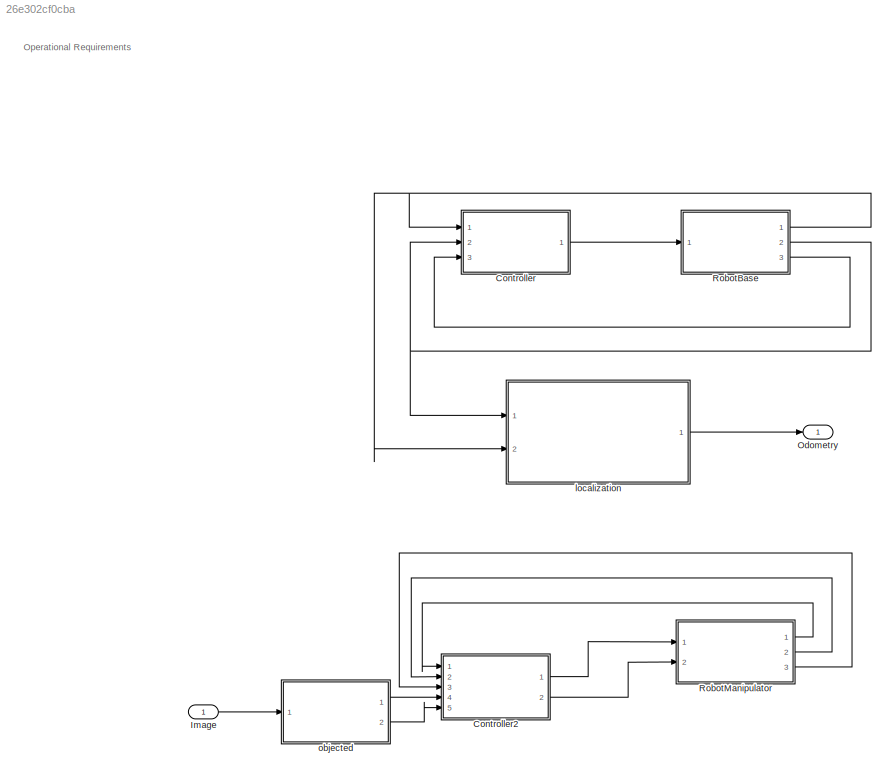
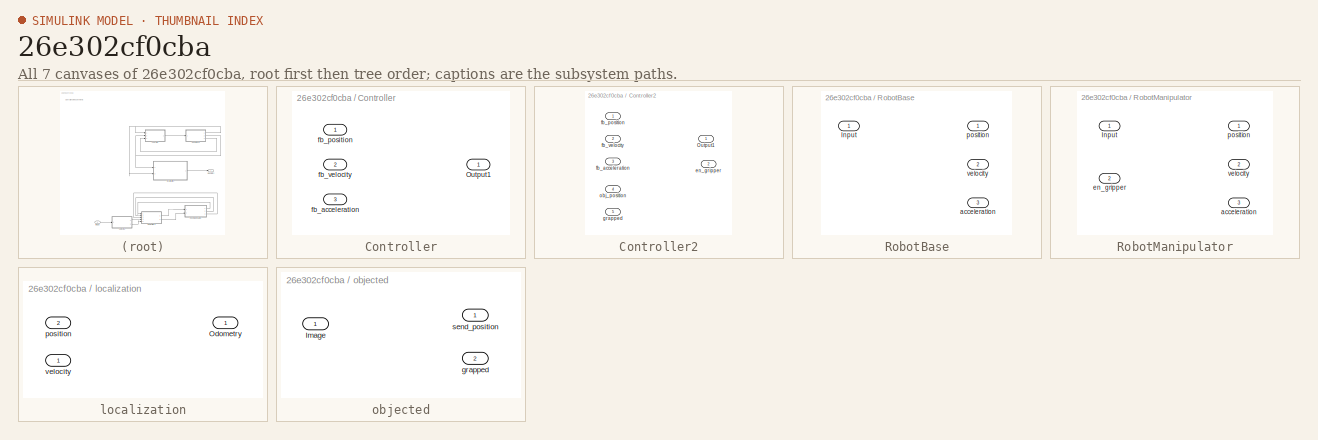
[diagram: thumbnail index - all 7 canvases of the model, root first then tree order]
MODEL slx_26e302cf0cba
KIND model
CONFIG AbsTol = auto
CONFIG EnableMultiTasking = off
CONFIG FixedStep = auto
CONFIG MaxStep = auto
CONFIG MinStep = auto
CONFIG RelTol = 1e-3
CONFIG SampleTimeConstraint = Unconstrained
CONFIG SolverName = VariableStepAuto
CONFIG StartTime = 0.0
CONFIG StopTime = 10.0
BLOCK [SubSystem] Controller
  Ports = [3, 1]
  RequestExecContextInheritance = off
BLOCK [Outport] Controller/Output1
BLOCK [Inport] Controller/fb_acceleration
  Port = 3
BLOCK [Inport] Controller/fb_position
BLOCK [Inport] Controller/fb_velocity
  Port = 2
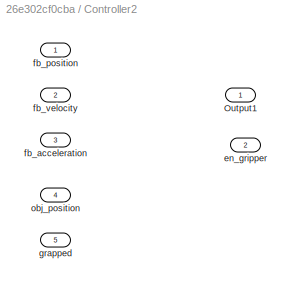
BLOCK [SubSystem] Controller2
  Ports = [5, 2]
  RequestExecContextInheritance = off
BLOCK [Outport] Controller2/Output1
BLOCK [Outport] Controller2/en_gripper
  Port = 2
BLOCK [Inport] Controller2/fb_acceleration
  Port = 3
BLOCK [Inport] Controller2/fb_position
BLOCK [Inport] Controller2/fb_velocity
  Port = 2
BLOCK [Inport] Controller2/grapped
  Port = 5
BLOCK [Inport] Controller2/obj_position
  Port = 4
BLOCK [Inport] Image
BLOCK [Outport] Odometry
BLOCK [SubSystem] RobotBase
  Ports = [1, 3]
  RequestExecContextInheritance = off
BLOCK [Inport] RobotBase/Input
BLOCK [Outport] RobotBase/acceleration
  Port = 3
BLOCK [Outport] RobotBase/position
BLOCK [Outport] RobotBase/velocity
  Port = 2
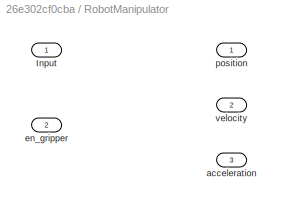
BLOCK [SubSystem] RobotManipulator
  Ports = [2, 3]
  RequestExecContextInheritance = off
BLOCK [Inport] RobotManipulator/Input
BLOCK [Outport] RobotManipulator/acceleration
  Port = 3
BLOCK [Inport] RobotManipulator/en_gripper
  Port = 2
BLOCK [Outport] RobotManipulator/position
BLOCK [Outport] RobotManipulator/velocity
  Port = 2
BLOCK [SubSystem] localization
  Ports = [2, 1]
  RequestExecContextInheritance = off
BLOCK [Outport] localization/Odometry
BLOCK [Inport] localization/position 
  Port = 2
BLOCK [Inport] localization/velocity
BLOCK [SubSystem] objected
  Ports = [1, 2]
  RequestExecContextInheritance = off
BLOCK [Inport] objected/Image
BLOCK [Outport] objected/grapped
  Port = 2
BLOCK [Outport] objected/send_position
ANNOTATION (root): Operational Requirements
LINE Controller2:1 -> RobotManipulator:1
LINE Controller2:2 -> RobotManipulator:2
LINE Controller:1 -> RobotBase:1
LINE Image:1 -> objected:1
NET RobotBase:1 -> Controller:1, localization:2
NET RobotBase:2 -> Controller:2, localization:1
LINE RobotBase:3 -> Controller:3
LINE RobotManipulator:1 -> Controller2:1
LINE RobotManipulator:2 -> Controller2:2
LINE RobotManipulator:3 -> Controller2:3
LINE localization:1 -> Odometry:1
LINE objected:1 -> Controller2:4
LINE objected:2 -> Controller2:5
note: NET lines group one-source signal fan-out (src -> all destinations, sorted); 1:1 wires keep LINE
